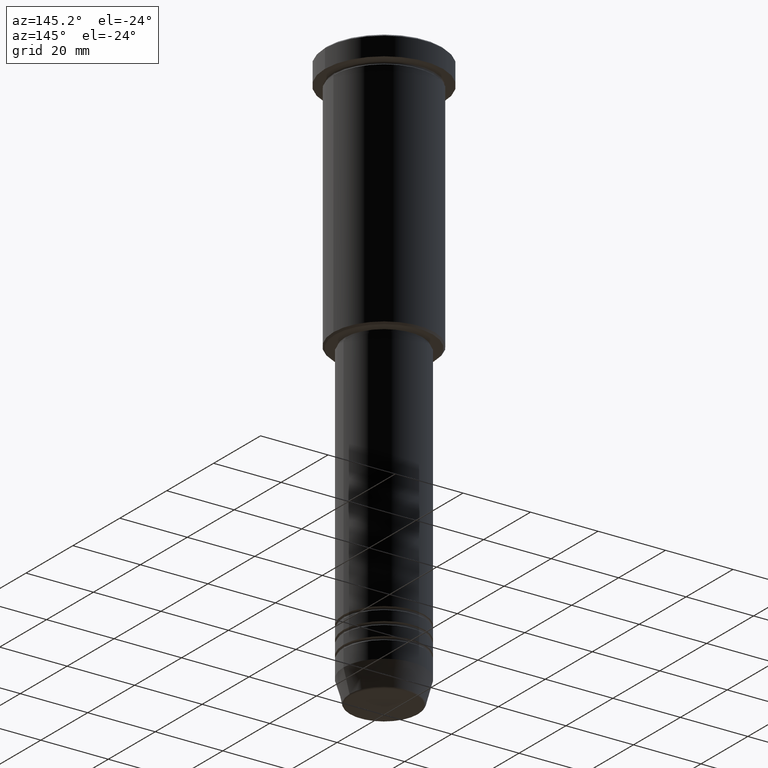
[diagram: clean part render]
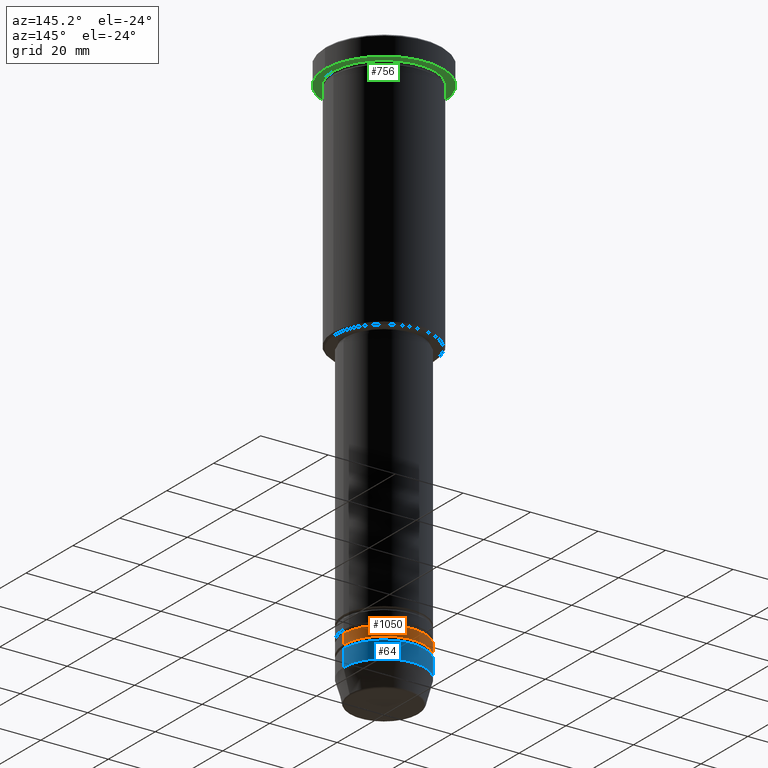
[diagram: same view with three faces highlighted in distinct colors, each labeled with its STEP entity id]
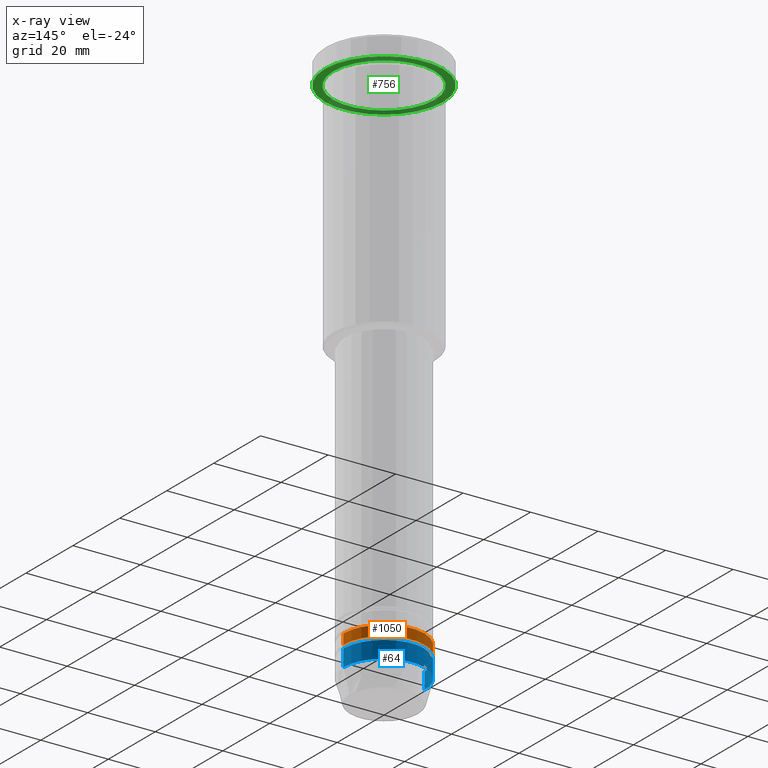
[diagram: x-ray of the same camera — body ghosted, the three highlighted faces saturated]
A machine part, auxiliary view with three faces highlighted in distinct colors.
The next image is the same camera in x-ray (body ghosted, the three faces saturated) — at least one of them is partly hidden behind the body in this view.
Their STEP definitions:

[orange] entity #1050 — the highlighted cylindrical surface (partial cylindrical patch) has radius 12 mm, axis along (-0, -0, 1).
#58 = CARTESIAN_POINT ( 'NONE',  ( -12.00000000000000000, 1.469576158976823947E-15, -157.9999999999998579 ) ) ;
#74 = DIRECTION ( 'NONE',  ( -0.000000000000000000, -0.000000000000000000, 1.000000000000000000 ) ) ;
#104 = EDGE_CURVE ( 'NONE', #967, #255, #613, .T. ) ;
#194 = CARTESIAN_POINT ( 'NONE',  ( 12.00000000000000000, 0.000000000000000000, -157.9999999999998579 ) ) ;
#202 = ORIENTED_EDGE ( 'NONE', *, *, #104, .T. ) ;
#255 = VERTEX_POINT ( 'NONE', #298 ) ;
#276 = ORIENTED_EDGE ( 'NONE', *, *, #352, .T. ) ;
#280 = FACE_OUTER_BOUND ( 'NONE', #792, .T. ) ;
#281 = DIRECTION ( 'NONE',  ( -0.000000000000000000, -0.000000000000000000, 1.000000000000000000 ) ) ;
#298 = CARTESIAN_POINT ( 'NONE',  ( -12.00000000000000000, 1.469576158976823947E-15, -154.9999999999998579 ) ) ;
#335 = CIRCLE ( 'NONE', #951, 12.00000000000000000 ) ;
#352 = EDGE_CURVE ( 'NONE', #584, #967, #353, .T. ) ;
#353 = CIRCLE ( 'NONE', #595, 12.00000000000000000 ) ;
#359 = CARTESIAN_POINT ( 'NONE',  ( 12.00000000000000000, 0.000000000000000000, -154.9999999999998579 ) ) ;
#369 = CARTESIAN_POINT ( 'NONE',  ( 0.000000000000000000, 0.000000000000000000, -154.9999999999998579 ) ) ;
#408 = EDGE_CURVE ( 'NONE', #584, #412, #873, .T. ) ;
#412 = VERTEX_POINT ( 'NONE', #359 ) ;
#418 = ORIENTED_EDGE ( 'NONE', *, *, #512, .F. ) ;
#426 = ORIENTED_EDGE ( 'NONE', *, *, #408, .F. ) ;
#439 = DIRECTION ( 'NONE',  ( -0.000000000000000000, -0.000000000000000000, 1.000000000000000000 ) ) ;
#467 = CYLINDRICAL_SURFACE ( 'NONE', #940, 12.00000000000000000 ) ;
#512 = EDGE_CURVE ( 'NONE', #412, #255, #335, .T. ) ;
#584 = VERTEX_POINT ( 'NONE', #194 ) ;
#595 = AXIS2_PLACEMENT_3D ( 'NONE', #717, #281, #633 ) ;
#613 = LINE ( 'NONE', #709, #886 ) ;
#633 = DIRECTION ( 'NONE',  ( 1.000000000000000000, 0.000000000000000000, 0.000000000000000000 ) ) ;
#686 = VECTOR ( 'NONE', #706, 1000.000000000000000 ) ;
#706 = DIRECTION ( 'NONE',  ( -0.000000000000000000, -0.000000000000000000, 1.000000000000000000 ) ) ;
#709 = CARTESIAN_POINT ( 'NONE',  ( -12.00000000000000000, 1.469576158976823947E-15, 0.000000000000000000 ) ) ;
#717 = CARTESIAN_POINT ( 'NONE',  ( 0.000000000000000000, 0.000000000000000000, -157.9999999999998579 ) ) ;
#792 = EDGE_LOOP ( 'NONE', ( #276, #202, #418, #426 ) ) ;
#803 = DIRECTION ( 'NONE',  ( -0.000000000000000000, -0.000000000000000000, 1.000000000000000000 ) ) ;
#818 = DIRECTION ( 'NONE',  ( 1.000000000000000000, 0.000000000000000000, 0.000000000000000000 ) ) ;
#873 = LINE ( 'NONE', #1171, #686 ) ;
#886 = VECTOR ( 'NONE', #803, 1000.000000000000000 ) ;
#940 = AXIS2_PLACEMENT_3D ( 'NONE', #995, #439, #818 ) ;
#951 = AXIS2_PLACEMENT_3D ( 'NONE', #369, #74, #1080 ) ;
#967 = VERTEX_POINT ( 'NONE', #58 ) ;
#995 = CARTESIAN_POINT ( 'NONE',  ( 0.000000000000000000, 0.000000000000000000, 0.000000000000000000 ) ) ;
#1050 = ADVANCED_FACE ( 'NONE', ( #280 ), #467, .T. ) ;
#1080 = DIRECTION ( 'NONE',  ( 1.000000000000000000, 0.000000000000000000, 0.000000000000000000 ) ) ;
#1171 = CARTESIAN_POINT ( 'NONE',  ( 12.00000000000000000, 0.000000000000000000, 0.000000000000000000 ) ) ;

[blue] entity #64 — the highlighted cylindrical surface (partial cylindrical patch) has radius 12 mm, axis along (-0, -0, 1).
#2 = ORIENTED_EDGE ( 'NONE', *, *, #320, .T. ) ;
#3 = EDGE_CURVE ( 'NONE', #807, #196, #683, .T. ) ;
#11 = CIRCLE ( 'NONE', #111, 12.00000000000000000 ) ;
#16 = EDGE_CURVE ( 'NONE', #196, #735, #910, .T. ) ;
#22 = VERTEX_POINT ( 'NONE', #1027 ) ;
#44 = VECTOR ( 'NONE', #720, 1000.000000000000000 ) ;
#51 = ORIENTED_EDGE ( 'NONE', *, *, #16, .F. ) ;
#64 = ADVANCED_FACE ( 'NONE', ( #404 ), #583, .T. ) ;
#111 = AXIS2_PLACEMENT_3D ( 'NONE', #719, #264, #884 ) ;
#131 = DIRECTION ( 'NONE',  ( -0.000000000000000000, -0.000000000000000000, 1.000000000000000000 ) ) ;
#166 = EDGE_LOOP ( 'NONE', ( #250, #2, #51, #660 ) ) ;
#196 = VERTEX_POINT ( 'NONE', #346 ) ;
#200 = CARTESIAN_POINT ( 'NONE',  ( -12.00000000000000000, 1.469576158976823947E-15, 0.000000000000000000 ) ) ;
#250 = ORIENTED_EDGE ( 'NONE', *, *, #1059, .T. ) ;
#264 = DIRECTION ( 'NONE',  ( -0.000000000000000000, -0.000000000000000000, 1.000000000000000000 ) ) ;
#320 = EDGE_CURVE ( 'NONE', #22, #735, #728, .T. ) ;
#325 = CARTESIAN_POINT ( 'NONE',  ( -12.00000000000000000, 1.469576158976823947E-15, -158.9999999999999716 ) ) ;
#346 = CARTESIAN_POINT ( 'NONE',  ( 12.00000000000000000, 0.000000000000000000, -158.9999999999999716 ) ) ;
#404 = FACE_OUTER_BOUND ( 'NONE', #166, .T. ) ;
#411 = CARTESIAN_POINT ( 'NONE',  ( 0.000000000000000000, 0.000000000000000000, -158.9999999999999716 ) ) ;
#583 = CYLINDRICAL_SURFACE ( 'NONE', #1024, 12.00000000000000000 ) ;
#587 = AXIS2_PLACEMENT_3D ( 'NONE', #411, #666, #1128 ) ;
#659 = CARTESIAN_POINT ( 'NONE',  ( 12.00000000000000000, 0.000000000000000000, -163.9999999999999716 ) ) ;
#660 = ORIENTED_EDGE ( 'NONE', *, *, #3, .F. ) ;
#666 = DIRECTION ( 'NONE',  ( -0.000000000000000000, -0.000000000000000000, 1.000000000000000000 ) ) ;
#683 = LINE ( 'NONE', #748, #835 ) ;
#719 = CARTESIAN_POINT ( 'NONE',  ( 0.000000000000000000, 0.000000000000000000, -163.9999999999999716 ) ) ;
#720 = DIRECTION ( 'NONE',  ( -0.000000000000000000, -0.000000000000000000, 1.000000000000000000 ) ) ;
#728 = LINE ( 'NONE', #200, #44 ) ;
#735 = VERTEX_POINT ( 'NONE', #325 ) ;
#748 = CARTESIAN_POINT ( 'NONE',  ( 12.00000000000000000, 0.000000000000000000, 0.000000000000000000 ) ) ;
#807 = VERTEX_POINT ( 'NONE', #659 ) ;
#835 = VECTOR ( 'NONE', #1121, 1000.000000000000000 ) ;
#849 = CARTESIAN_POINT ( 'NONE',  ( 0.000000000000000000, 0.000000000000000000, 0.000000000000000000 ) ) ;
#884 = DIRECTION ( 'NONE',  ( 1.000000000000000000, 0.000000000000000000, 0.000000000000000000 ) ) ;
#910 = CIRCLE ( 'NONE', #587, 12.00000000000000000 ) ;
#1024 = AXIS2_PLACEMENT_3D ( 'NONE', #849, #131, #1032 ) ;
#1027 = CARTESIAN_POINT ( 'NONE',  ( -12.00000000000000000, 1.469576158976823947E-15, -163.9999999999999716 ) ) ;
#1032 = DIRECTION ( 'NONE',  ( 1.000000000000000000, 0.000000000000000000, 0.000000000000000000 ) ) ;
#1059 = EDGE_CURVE ( 'NONE', #807, #22, #11, .T. ) ;
#1121 = DIRECTION ( 'NONE',  ( -0.000000000000000000, -0.000000000000000000, 1.000000000000000000 ) ) ;
#1128 = DIRECTION ( 'NONE',  ( 1.000000000000000000, 0.000000000000000000, 0.000000000000000000 ) ) ;

[green] entity #756 — the highlighted planar face has unit normal (0, 0, -1).
#29 = EDGE_CURVE ( 'NONE', #266, #158, #406, .T. ) ;
#34 = EDGE_CURVE ( 'NONE', #158, #266, #78, .T. ) ;
#35 = AXIS2_PLACEMENT_3D ( 'NONE', #1045, #1053, #316 ) ;
#38 = CARTESIAN_POINT ( 'NONE',  ( 0.000000000000000000, 17.50000000000000000, -5.999999999999995559 ) ) ;
#52 = DIRECTION ( 'NONE',  ( -1.000000000000000000, 0.000000000000000000, -0.000000000000000000 ) ) ;
#78 = CIRCLE ( 'NONE', #35, 15.00000000000000000 ) ;
#146 = DIRECTION ( 'NONE',  ( 1.000000000000000000, 0.000000000000000000, 0.000000000000000000 ) ) ;
#158 = VERTEX_POINT ( 'NONE', #235 ) ;
#185 = AXIS2_PLACEMENT_3D ( 'NONE', #881, #534, #146 ) ;
#214 = DIRECTION ( 'NONE',  ( -0.000000000000000000, -0.000000000000000000, 1.000000000000000000 ) ) ;
#226 = FACE_BOUND ( 'NONE', #755, .T. ) ;
#229 = CARTESIAN_POINT ( 'NONE',  ( 0.000000000000000000, 0.000000000000000000, -5.999999999999995559 ) ) ;
#235 = CARTESIAN_POINT ( 'NONE',  ( -15.00000000000000000, 0.000000000000000000, -5.999999999999994671 ) ) ;
#266 = VERTEX_POINT ( 'NONE', #274 ) ;
#274 = CARTESIAN_POINT ( 'NONE',  ( 15.00000000000000000, 1.836970198721029589E-15, -5.999999999999994671 ) ) ;
#289 = ORIENTED_EDGE ( 'NONE', *, *, #663, .F. ) ;
#301 = CIRCLE ( 'NONE', #185, 17.50000000000000000 ) ;
#314 = PLANE ( 'NONE',  #580 ) ;
#316 = DIRECTION ( 'NONE',  ( -1.000000000000000000, 0.000000000000000000, 0.000000000000000000 ) ) ;
#322 = DIRECTION ( 'NONE',  ( -1.000000000000000000, 0.000000000000000000, 0.000000000000000000 ) ) ;
#406 = CIRCLE ( 'NONE', #1070, 15.00000000000000000 ) ;
#479 = ORIENTED_EDGE ( 'NONE', *, *, #29, .T. ) ;
#483 = VERTEX_POINT ( 'NONE', #799 ) ;
#504 = EDGE_CURVE ( 'NONE', #483, #1116, #301, .T. ) ;
#534 = DIRECTION ( 'NONE',  ( -0.000000000000000000, -0.000000000000000000, 1.000000000000000000 ) ) ;
#580 = AXIS2_PLACEMENT_3D ( 'NONE', #38, #939, #52 ) ;
#585 = FACE_OUTER_BOUND ( 'NONE', #775, .T. ) ;
#588 = DIRECTION ( 'NONE',  ( 1.000000000000000000, 0.000000000000000000, 0.000000000000000000 ) ) ;
#623 = ORIENTED_EDGE ( 'NONE', *, *, #504, .F. ) ;
#663 = EDGE_CURVE ( 'NONE', #1116, #483, #998, .T. ) ;
#751 = CARTESIAN_POINT ( 'NONE',  ( 0.000000000000000000, 0.000000000000000000, -5.999999999999995559 ) ) ;
#755 = EDGE_LOOP ( 'NONE', ( #1042, #479 ) ) ;
#756 = ADVANCED_FACE ( 'NONE', ( #226, #585 ), #314, .T. ) ;
#775 = EDGE_LOOP ( 'NONE', ( #623, #289 ) ) ;
#799 = CARTESIAN_POINT ( 'NONE',  ( 17.50000000000000000, 0.000000000000000000, -5.999999999999995559 ) ) ;
#881 = CARTESIAN_POINT ( 'NONE',  ( 0.000000000000000000, 0.000000000000000000, -5.999999999999995559 ) ) ;
#931 = DIRECTION ( 'NONE',  ( -0.000000000000000000, -0.000000000000000000, 1.000000000000000000 ) ) ;
#939 = DIRECTION ( 'NONE',  ( 0.000000000000000000, 0.000000000000000000, -1.000000000000000000 ) ) ;
#971 = AXIS2_PLACEMENT_3D ( 'NONE', #751, #214, #588 ) ;
#972 = CARTESIAN_POINT ( 'NONE',  ( -17.50000000000000000, 2.143131898507868248E-15, -5.999999999999995559 ) ) ;
#998 = CIRCLE ( 'NONE', #971, 17.50000000000000000 ) ;
#1042 = ORIENTED_EDGE ( 'NONE', *, *, #34, .T. ) ;
#1045 = CARTESIAN_POINT ( 'NONE',  ( 0.000000000000000000, 0.000000000000000000, -5.999999999999995559 ) ) ;
#1053 = DIRECTION ( 'NONE',  ( -0.000000000000000000, -0.000000000000000000, 1.000000000000000000 ) ) ;
#1070 = AXIS2_PLACEMENT_3D ( 'NONE', #229, #931, #322 ) ;
#1116 = VERTEX_POINT ( 'NONE', #972 ) ;